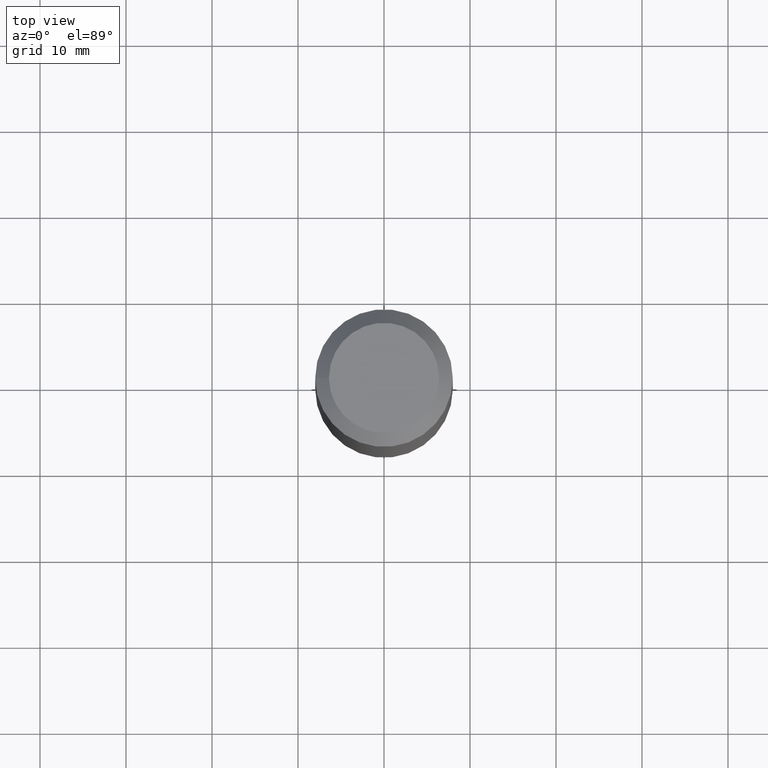
[diagram: clean part render]
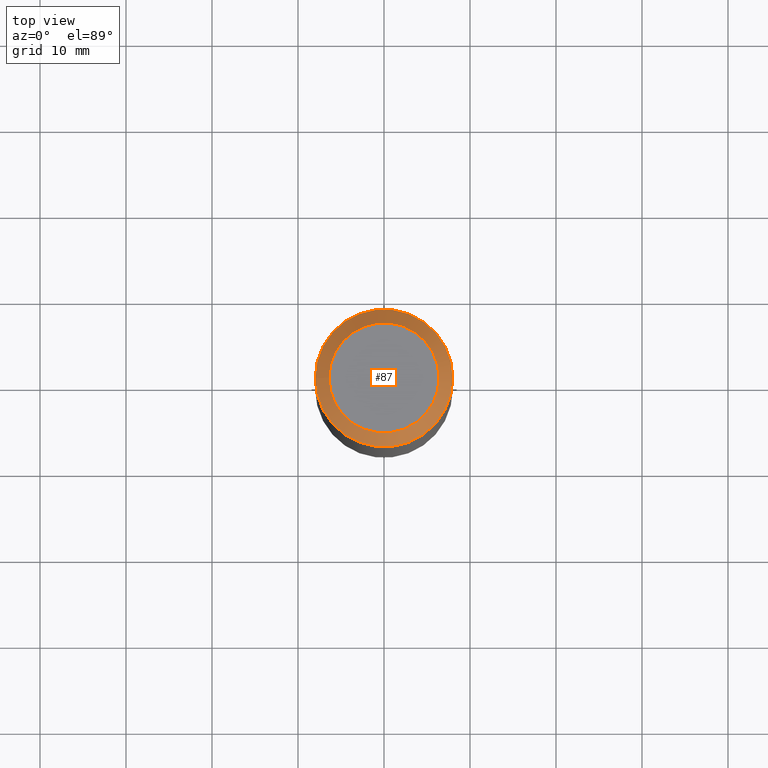
[diagram: same view with one face highlighted and labeled with its STEP entity id]
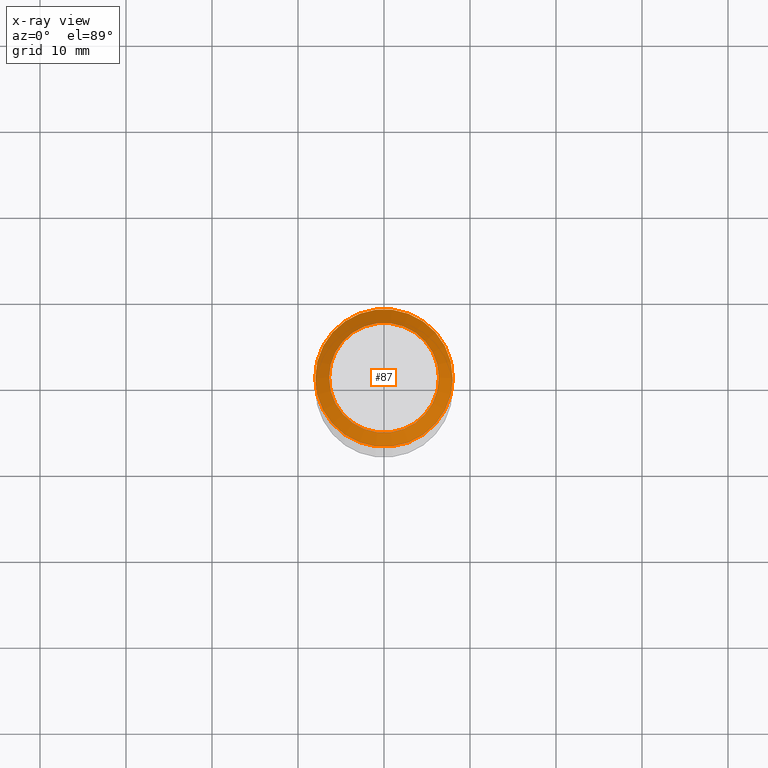
[diagram: x-ray of the same camera — body ghosted, the highlighted face saturated]
A machine part, top view. The second image highlights one B-rep face of the part: STEP entity #87.
The next image is the same camera in x-ray: the body ghosted, the highlighted face saturated — about 0% of this face is hidden behind the body in this view.
In plain terms, the highlighted conical surface has half-angle 45 deg.
Its self-contained STEP definition (entity closure, byte-faithful):
#15 = VERTEX_POINT ( 'NONE', #66 ) ;
#42 = DIRECTION ( 'NONE',  ( -1.000000000000000000, 0.0000000000000000000, 6.982962677686267499E-15 ) ) ;
#44 = DIRECTION ( 'NONE',  ( -1.000000000000000000, 0.0000000000000000000, 6.982962677686267499E-15 ) ) ;
#59 = DIRECTION ( 'NONE',  ( -1.000000000000000000, 0.0000000000000000000, 6.993104012531503599E-15 ) ) ;
#61 = FACE_BOUND ( 'NONE', #129, .T. ) ;
#62 = AXIS2_PLACEMENT_3D ( 'NONE', #80, #108, #44 ) ;
#66 = CARTESIAN_POINT ( 'NONE',  ( -8.000000000000010658, 0.0000000000000000000, -1.599999999999948352 ) ) ;
#80 = CARTESIAN_POINT ( 'NONE',  ( 0.0000000000000000000, 0.0000000000000000000, 0.0000000000000000000 ) ) ;
#87 = ADVANCED_FACE ( 'NONE', ( #160, #61 ), #162, .T. ) ;
#89 = ORIENTED_EDGE ( 'NONE', *, *, #125, .F. ) ;
#91 = CIRCLE ( 'NONE', #148, 8.000000000000000000 ) ;
#93 = CARTESIAN_POINT ( 'NONE',  ( -1.117274028429805514E-14, 0.0000000000000000000, -1.600000000000004086 ) ) ;
#105 = EDGE_LOOP ( 'NONE', ( #89 ) ) ;
#108 = DIRECTION ( 'NONE',  ( -6.982962677686266711E-15, 0.0000000000000000000, -1.000000000000000000 ) ) ;
#110 = CIRCLE ( 'NONE', #62, 6.399999999999994138 ) ;
#111 = DIRECTION ( 'NONE',  ( -6.982962677686266711E-15, 0.0000000000000000000, -1.000000000000000000 ) ) ;
#119 = ORIENTED_EDGE ( 'NONE', *, *, #174, .T. ) ;
#124 = DIRECTION ( 'NONE',  ( -6.982962677686266711E-15, 0.0000000000000000000, -1.000000000000000000 ) ) ;
#125 = EDGE_CURVE ( 'NONE', #15, #15, #91, .T. ) ;
#129 = EDGE_LOOP ( 'NONE', ( #119 ) ) ;
#132 = VERTEX_POINT ( 'NONE', #135 ) ;
#135 = CARTESIAN_POINT ( 'NONE',  ( -6.399999999999994138, 0.0000000000000000000, 4.469096113719206908E-14 ) ) ;
#145 = CARTESIAN_POINT ( 'NONE',  ( 0.0000000000000000000, 0.0000000000000000000, 0.0000000000000000000 ) ) ;
#148 = AXIS2_PLACEMENT_3D ( 'NONE', #93, #111, #59 ) ;
#150 = AXIS2_PLACEMENT_3D ( 'NONE', #145, #124, #42 ) ;
#160 = FACE_OUTER_BOUND ( 'NONE', #105, .T. ) ;
#162 = CONICAL_SURFACE ( 'NONE', #150, 6.399999999999994138, 0.7853981633974488341 ) ;
#174 = EDGE_CURVE ( 'NONE', #132, #132, #110, .T. ) ;